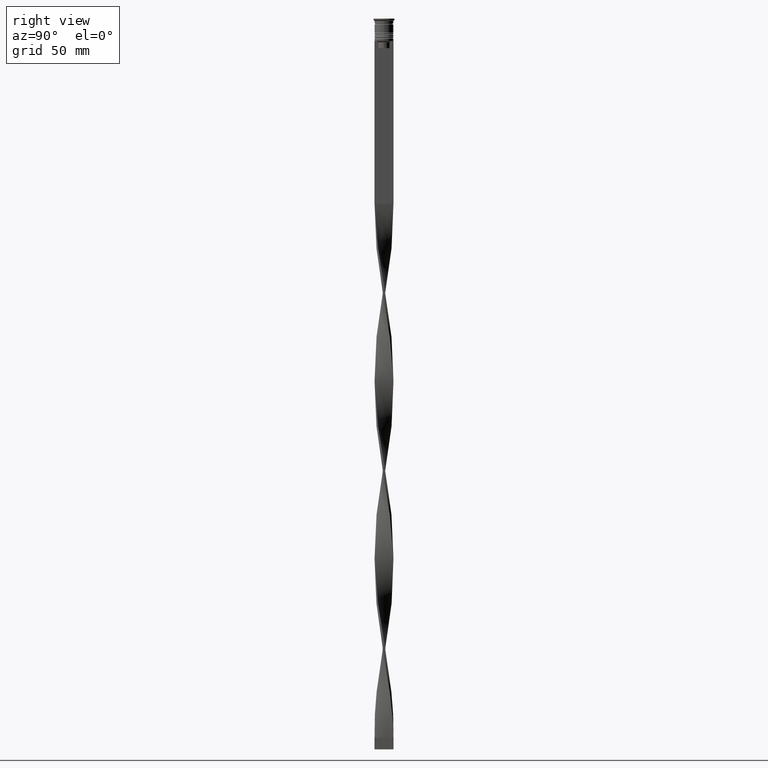
[diagram: clean part render]
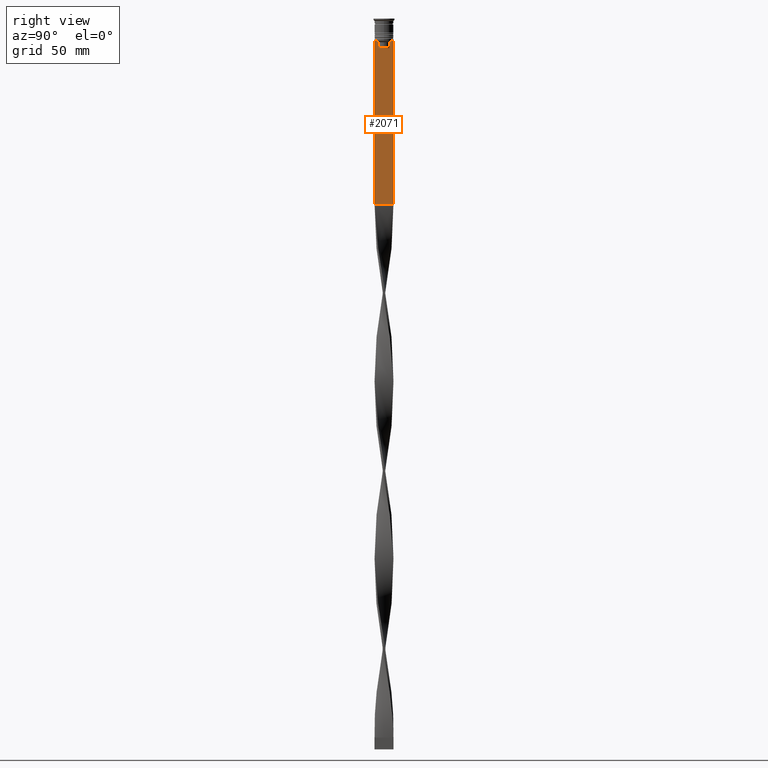
[diagram: same view with one face highlighted and labeled with its STEP entity id]
A machine part, right view. The second image highlights one B-rep face of the part: STEP entity #2071.
In plain terms, the highlighted planar face has unit normal (-1, 0, 0).
Its self-contained STEP definition (entity closure, byte-faithful):
#3 = EDGE_CURVE ( 'NONE', #1145, #3405, #1531, .T. ) ;
#27 = EDGE_CURVE ( 'NONE', #2389, #2991, #3736, .T. ) ;
#71 = CARTESIAN_POINT ( 'NONE',  ( 0.5000000000000000000, 2.687094542495898075, -9.666938847453439010 ) ) ;
#76 = LINE ( 'NONE', #1322, #1555 ) ;
#129 = CARTESIAN_POINT ( 'NONE',  ( 0.5000000000000000000, 2.856571371417138572, -9.500000000000000000 ) ) ;
#179 = VECTOR ( 'NONE', #2337, 1000.000000000000000 ) ;
#180 = LINE ( 'NONE', #3954, #1496 ) ;
#228 = VERTEX_POINT ( 'NONE', #3465 ) ;
#235 = VERTEX_POINT ( 'NONE', #2501 ) ;
#387 = ORIENTED_EDGE ( 'NONE', *, *, #2551, .F. ) ;
#418 = CARTESIAN_POINT ( 'NONE',  ( 0.5000000000000000000, 4.000000000000000000, -1.437742251701450202 ) ) ;
#419 = CARTESIAN_POINT ( 'NONE',  ( 0.5000000000000000000, -2.347338918861097135, -12.50000000000000000 ) ) ;
#509 = VECTOR ( 'NONE', #565, 1000.000000000000000 ) ;
#534 = CARTESIAN_POINT ( 'NONE',  ( 0.5000000000000000000, -2.856571371417138572, -9.500000000000000000 ) ) ;
#565 = DIRECTION ( 'NONE',  ( 0.000000000000000000, -1.000000000000000000, 0.000000000000000000 ) ) ;
#696 = B_SPLINE_CURVE_WITH_KNOTS ( 'NONE', 3,
 ( #2303, #3233, #1646, #3826 ),
 .UNSPECIFIED., .F., .F.,
 ( 4, 4 ),
 ( 0.01178336557230038467, 0.01249758354768160280 ),
 .UNSPECIFIED. ) ;
#727 = VERTEX_POINT ( 'NONE', #906 ) ;
#768 = VECTOR ( 'NONE', #2512, 1000.000000000000000 ) ;
#792 = ORIENTED_EDGE ( 'NONE', *, *, #3, .T. ) ;
#838 = EDGE_CURVE ( 'NONE', #3405, #727, #76, .T. ) ;
#856 = LINE ( 'NONE', #1849, #509 ) ;
#891 = EDGE_LOOP ( 'NONE', ( #1444, #3995, #2481, #3440, #2460, #2110, #792, #3911, #3110, #3398, #387, #3982 ) ) ;
#906 = CARTESIAN_POINT ( 'NONE',  ( 0.5000000000000000000, -4.000000000000000000, -9.500000000000000000 ) ) ;
#964 = EDGE_CURVE ( 'NONE', #2991, #2531, #3254, .T. ) ;
#1002 = CARTESIAN_POINT ( 'NONE',  ( 0.5000000000000000000, 2.347338918861097135, 0.000000000000000000 ) ) ;
#1021 = DIRECTION ( 'NONE',  ( 0.000000000000000000, 0.000000000000000000, -1.000000000000000000 ) ) ;
#1083 = DIRECTION ( 'NONE',  ( 0.000000000000000000, 1.000000000000000000, 0.000000000000000000 ) ) ;
#1097 = DIRECTION ( 'NONE',  ( -1.000000000000000000, 0.000000000000000000, 0.000000000000000000 ) ) ;
#1129 = DIRECTION ( 'NONE',  ( 0.000000000000000000, -1.000000000000000000, 0.000000000000000000 ) ) ;
#1145 = VERTEX_POINT ( 'NONE', #534 ) ;
#1322 = CARTESIAN_POINT ( 'NONE',  ( 0.5000000000000000000, -4.000000000000000000, -9.500000000000000000 ) ) ;
#1334 = CARTESIAN_POINT ( 'NONE',  ( 0.5000000000000000000, 2.347338918861097135, -10.00000000000000000 ) ) ;
#1440 = B_SPLINE_CURVE_WITH_KNOTS ( 'NONE', 3,
 ( #1933, #71, #2837, #1334 ),
 .UNSPECIFIED., .F., .F.,
 ( 4, 4 ),
 ( 0.004956812174141191595, 0.005670477137898149653 ),
 .UNSPECIFIED. ) ;
#1444 = ORIENTED_EDGE ( 'NONE', *, *, #1445, .T. ) ;
#1445 = EDGE_CURVE ( 'NONE', #2029, #3933, #180, .T. ) ;
#1446 = EDGE_CURVE ( 'NONE', #2488, #228, #3992, .T. ) ;
#1496 = VECTOR ( 'NONE', #1129, 1000.000000000000000 ) ;
#1531 = LINE ( 'NONE', #1821, #2276 ) ;
#1555 = VECTOR ( 'NONE', #3219, 1000.000000000000000 ) ;
#1569 = EDGE_CURVE ( 'NONE', #727, #2488, #1855, .T. ) ;
#1600 = LINE ( 'NONE', #1002, #1695 ) ;
#1646 = CARTESIAN_POINT ( 'NONE',  ( 0.5000000000000000000, -2.687095498514037839, -9.666937905752043037 ) ) ;
#1658 = FACE_OUTER_BOUND ( 'NONE', #891, .T. ) ;
#1695 = VECTOR ( 'NONE', #1021, 1000.000000000000000 ) ;
#1701 = CARTESIAN_POINT ( 'NONE',  ( 0.5000000000000000000, -2.347338918861097135, -10.00000000000000000 ) ) ;
#1821 = CARTESIAN_POINT ( 'NONE',  ( 0.5000000000000000000, -4.000000000000000000, -9.500000000000000000 ) ) ;
#1849 = CARTESIAN_POINT ( 'NONE',  ( 0.5000000000000000000, -4.000000000000000000, -9.500000000000000000 ) ) ;
#1855 = LINE ( 'NONE', #3701, #768 ) ;
#1859 = CARTESIAN_POINT ( 'NONE',  ( 0.5000000000000000000, 3.867815921162741422, -9.500000000000000000 ) ) ;
#1933 = CARTESIAN_POINT ( 'NONE',  ( 0.5000000000000000000, 2.856571371417138572, -9.500000000000000000 ) ) ;
#2029 = VERTEX_POINT ( 'NONE', #1859 ) ;
#2047 = CARTESIAN_POINT ( 'NONE',  ( 0.5000000000000000000, -4.000000000000000000, -1.437742251701450202 ) ) ;
#2071 = ADVANCED_FACE ( 'NONE', ( #1658 ), #3568, .F. ) ;
#2110 = ORIENTED_EDGE ( 'NONE', *, *, #3359, .T. ) ;
#2219 = AXIS2_PLACEMENT_3D ( 'NONE', #2047, #1097, #3588 ) ;
#2220 = CARTESIAN_POINT ( 'NONE',  ( 0.5000000000000000000, -3.867815921162741422, -9.500000000000000000 ) ) ;
#2265 = DIRECTION ( 'NONE',  ( -0.000000000000000000, -0.000000000000000000, 1.000000000000000000 ) ) ;
#2276 = VECTOR ( 'NONE', #2398, 1000.000000000000000 ) ;
#2281 = VECTOR ( 'NONE', #2265, 1000.000000000000000 ) ;
#2303 = CARTESIAN_POINT ( 'NONE',  ( 0.5000000000000000000, -2.347338918861097135, -10.00000000000000000 ) ) ;
#2337 = DIRECTION ( 'NONE',  ( 0.000000000000000000, 0.000000000000000000, -1.000000000000000000 ) ) ;
#2389 = VERTEX_POINT ( 'NONE', #3514 ) ;
#2398 = DIRECTION ( 'NONE',  ( 0.000000000000000000, -1.000000000000000000, 0.000000000000000000 ) ) ;
#2460 = ORIENTED_EDGE ( 'NONE', *, *, #964, .T. ) ;
#2481 = ORIENTED_EDGE ( 'NONE', *, *, #2797, .T. ) ;
#2488 = VERTEX_POINT ( 'NONE', #3247 ) ;
#2501 = CARTESIAN_POINT ( 'NONE',  ( 0.5000000000000000000, 4.000000000000000000, -9.500000000000000000 ) ) ;
#2512 = DIRECTION ( 'NONE',  ( 0.000000000000000000, 0.000000000000000000, -1.000000000000000000 ) ) ;
#2531 = VERTEX_POINT ( 'NONE', #1701 ) ;
#2551 = EDGE_CURVE ( 'NONE', #235, #228, #3900, .T. ) ;
#2716 = CARTESIAN_POINT ( 'NONE',  ( 0.5000000000000000000, -4.000000000000000000, -78.50000000000000000 ) ) ;
#2797 = EDGE_CURVE ( 'NONE', #3963, #2389, #1600, .T. ) ;
#2837 = CARTESIAN_POINT ( 'NONE',  ( 0.5000000000000000000, 2.517407211010872281, -9.833663366238582171 ) ) ;
#2945 = CARTESIAN_POINT ( 'NONE',  ( 0.5000000000000000000, -2.347338918861097135, 0.000000000000000000 ) ) ;
#2991 = VERTEX_POINT ( 'NONE', #419 ) ;
#3051 = EDGE_CURVE ( 'NONE', #235, #2029, #856, .T. ) ;
#3110 = ORIENTED_EDGE ( 'NONE', *, *, #1569, .T. ) ;
#3219 = DIRECTION ( 'NONE',  ( 0.000000000000000000, -1.000000000000000000, 0.000000000000000000 ) ) ;
#3233 = CARTESIAN_POINT ( 'NONE',  ( 0.5000000000000000000, -2.517408374291112416, -9.833662228483172285 ) ) ;
#3247 = CARTESIAN_POINT ( 'NONE',  ( 0.5000000000000000000, -4.000000000000000000, -78.50000000000000000 ) ) ;
#3254 = LINE ( 'NONE', #2945, #2281 ) ;
#3263 = VECTOR ( 'NONE', #3712, 1000.000000000000000 ) ;
#3350 = CARTESIAN_POINT ( 'NONE',  ( 0.5000000000000000000, 2.399999999999996803, -12.50000000000000000 ) ) ;
#3359 = EDGE_CURVE ( 'NONE', #2531, #1145, #696, .T. ) ;
#3397 = VECTOR ( 'NONE', #1083, 1000.000000000000000 ) ;
#3398 = ORIENTED_EDGE ( 'NONE', *, *, #1446, .T. ) ;
#3405 = VERTEX_POINT ( 'NONE', #2220 ) ;
#3440 = ORIENTED_EDGE ( 'NONE', *, *, #27, .T. ) ;
#3465 = CARTESIAN_POINT ( 'NONE',  ( 0.5000000000000000000, 4.000000000000000000, -78.50000000000000000 ) ) ;
#3508 = EDGE_CURVE ( 'NONE', #3933, #3963, #1440, .T. ) ;
#3514 = CARTESIAN_POINT ( 'NONE',  ( 0.5000000000000000000, 2.347338918861097135, -12.50000000000000000 ) ) ;
#3568 = PLANE ( 'NONE',  #2219 ) ;
#3588 = DIRECTION ( 'NONE',  ( 0.000000000000000000, 0.000000000000000000, 1.000000000000000000 ) ) ;
#3590 = CARTESIAN_POINT ( 'NONE',  ( 0.5000000000000000000, 2.347338918861097135, -10.00000000000000000 ) ) ;
#3701 = CARTESIAN_POINT ( 'NONE',  ( 0.5000000000000000000, -4.000000000000000000, -1.437742251701450202 ) ) ;
#3712 = DIRECTION ( 'NONE',  ( 0.000000000000000000, -1.000000000000000000, 0.000000000000000000 ) ) ;
#3736 = LINE ( 'NONE', #3350, #3263 ) ;
#3826 = CARTESIAN_POINT ( 'NONE',  ( 0.5000000000000000000, -2.856571371417138572, -9.500000000000000000 ) ) ;
#3900 = LINE ( 'NONE', #418, #179 ) ;
#3911 = ORIENTED_EDGE ( 'NONE', *, *, #838, .T. ) ;
#3933 = VERTEX_POINT ( 'NONE', #129 ) ;
#3954 = CARTESIAN_POINT ( 'NONE',  ( 0.5000000000000000000, -4.000000000000000000, -9.500000000000000000 ) ) ;
#3963 = VERTEX_POINT ( 'NONE', #3590 ) ;
#3982 = ORIENTED_EDGE ( 'NONE', *, *, #3051, .T. ) ;
#3992 = LINE ( 'NONE', #2716, #3397 ) ;
#3995 = ORIENTED_EDGE ( 'NONE', *, *, #3508, .T. ) ;